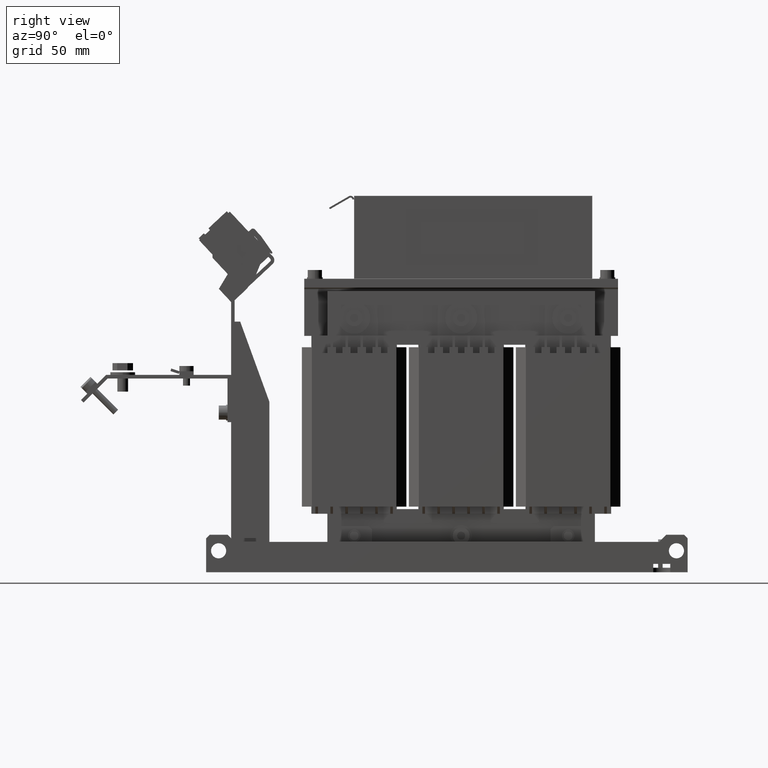
[diagram: clean part render]
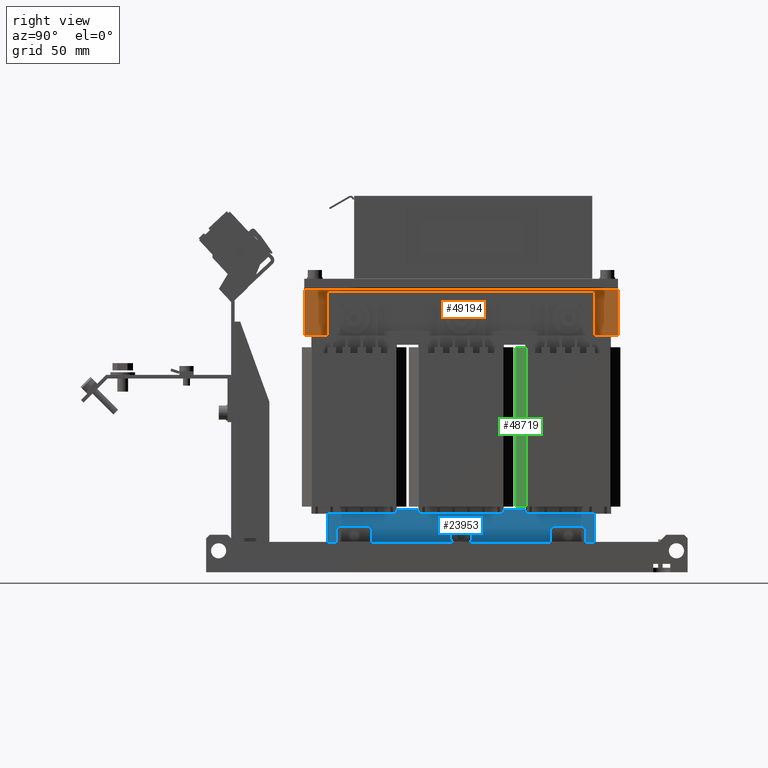
[diagram: same view with three faces highlighted in distinct colors, each labeled with its STEP entity id]
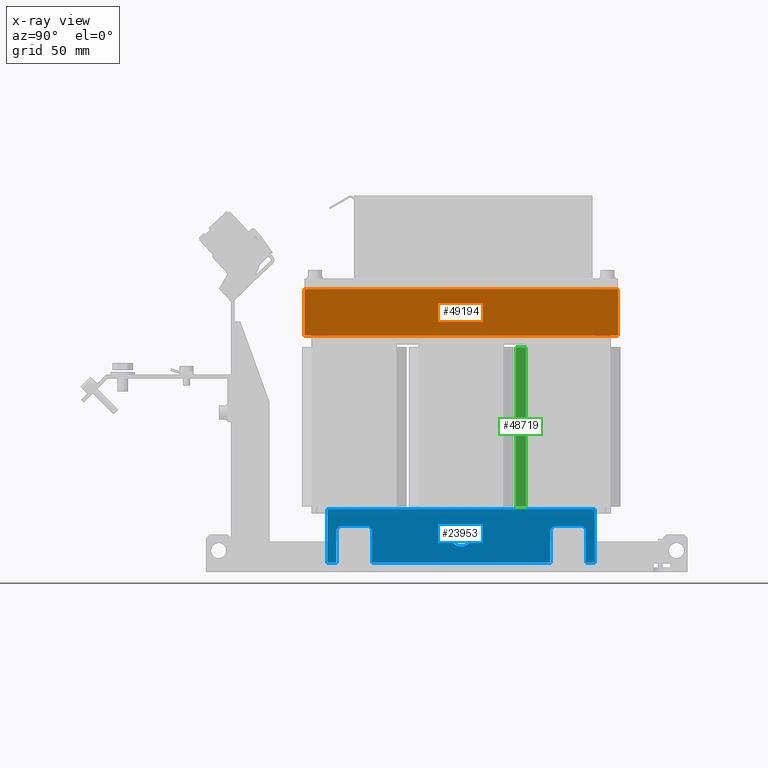
[diagram: x-ray of the same camera — body ghosted, the three highlighted faces saturated]
A machine part, right view with three faces highlighted in distinct colors.
The next image is the same camera in x-ray (body ghosted, the three faces saturated) — at least one of them is partly hidden behind the body in this view.
Their STEP definitions:

[orange] entity #49194 — the highlighted planar face has unit normal (1, 0, 0).
#37868=DIRECTION('',(0.E0,-1.803685406160E-14,-1.E0));
#37869=VECTOR('',#37868,2.6E1);
#37870=CARTESIAN_POINT('',(-1.575E1,9.599999999988E1,1.5605E2));
#37871=LINE('',#37870,#37869);
#37909=DIRECTION('',(0.E0,-1.E0,1.744059442320E-14));
#37910=VECTOR('',#37909,1.76E2);
#37911=CARTESIAN_POINT('',(-1.575E1,9.599999999988E1,1.5605E2));
#37912=LINE('',#37911,#37910);
#37913=DIRECTION('',(0.E0,-1.E0,1.776356839400E-14));
#37914=VECTOR('',#37913,1.76E2);
#37915=CARTESIAN_POINT('',(-1.575E1,9.599999999988E1,1.3005E2));
#37916=LINE('',#37915,#37914);
#38494=DIRECTION('',(0.E0,-1.749028272640E-14,-1.E0));
#38495=VECTOR('',#38494,2.6E1);
#38496=CARTESIAN_POINT('',(-1.575E1,-8.000000000012E1,1.5605E2));
#38497=LINE('',#38496,#38495);
#41191=CARTESIAN_POINT('',(-1.575E1,9.599999999988E1,1.5605E2));
#41192=VERTEX_POINT('',#41191);
#41193=CARTESIAN_POINT('',(-1.575E1,9.599999999988E1,1.3005E2));
#41194=VERTEX_POINT('',#41193);
#41215=CARTESIAN_POINT('',(-1.575E1,-8.000000000012E1,1.5605E2));
#41216=VERTEX_POINT('',#41215);
#41217=CARTESIAN_POINT('',(-1.575E1,-8.000000000012E1,1.3005E2));
#41218=VERTEX_POINT('',#41217);
#49181=CARTESIAN_POINT('',(-1.575E1,9.599999999988E1,1.5605E2));
#49182=DIRECTION('',(1.E0,0.E0,0.E0));
#49183=DIRECTION('',(0.E0,-1.764394935219E-14,-1.E0));
#49184=AXIS2_PLACEMENT_3D('',#49181,#49182,#49183);
#49185=PLANE('',#49184);
#49186=ORIENTED_EDGE('',*,*,#49097,.T.);
#49188=ORIENTED_EDGE('',*,*,#49187,.T.);
#49190=ORIENTED_EDGE('',*,*,#49189,.F.);
#49191=ORIENTED_EDGE('',*,*,#49173,.F.);
#49192=EDGE_LOOP('',(#49186,#49188,#49190,#49191));
#49193=FACE_OUTER_BOUND('',#49192,.F.);
#49194=ADVANCED_FACE('',(#49193),#49185,.T.);
#49097=EDGE_CURVE('',#41192,#41194,#37871,.T.);
#49173=EDGE_CURVE('',#41192,#41216,#37912,.T.);
#49187=EDGE_CURVE('',#41194,#41218,#37916,.T.);
#49189=EDGE_CURVE('',#41216,#41218,#38497,.T.);

[blue] entity #23953 — the highlighted planar face has unit normal (1, 0, 0).
#7519=DIRECTION('',(0.E0,0.E0,1.E0));
#7520=VECTOR('',#7519,1.85E1);
#7521=CARTESIAN_POINT('',(1.575E1,-6.2E1,2.85E0));
#7522=LINE('',#7521,#7520);
#7523=DIRECTION('',(0.E0,1.E0,0.E0));
#7524=VECTOR('',#7523,5.E0);
#7525=CARTESIAN_POINT('',(1.575E1,-6.7E1,2.85E0));
#7526=LINE('',#7525,#7524);
#7527=DIRECTION('',(0.E0,0.E0,-1.E0));
#7528=VECTOR('',#7527,3.E1);
#7529=CARTESIAN_POINT('',(1.575E1,-6.7E1,3.285E1));
#7530=LINE('',#7529,#7528);
#7531=DIRECTION('',(0.E0,-1.E0,0.E0));
#7532=VECTOR('',#7531,1.5E2);
#7533=CARTESIAN_POINT('',(1.575E1,8.3E1,3.285E1));
#7534=LINE('',#7533,#7532);
#7535=DIRECTION('',(0.E0,0.E0,1.E0));
#7536=VECTOR('',#7535,3.E1);
#7537=CARTESIAN_POINT('',(1.575E1,8.3E1,2.85E0));
#7538=LINE('',#7537,#7536);
#7539=DIRECTION('',(0.E0,1.E0,0.E0));
#7540=VECTOR('',#7539,5.E0);
#7541=CARTESIAN_POINT('',(1.575E1,7.8E1,2.85E0));
#7542=LINE('',#7541,#7540);
#7543=DIRECTION('',(0.E0,0.E0,1.E0));
#7544=VECTOR('',#7543,1.85E1);
#7545=CARTESIAN_POINT('',(1.575E1,7.8E1,2.85E0));
#7546=LINE('',#7545,#7544);
#7547=DIRECTION('',(0.E0,-7.071067811866E-1,7.071067811865E-1));
#7548=VECTOR('',#7547,2.828427124746E0);
#7549=CARTESIAN_POINT('',(1.575E1,7.8E1,2.135E1));
#7550=LINE('',#7549,#7548);
#7551=DIRECTION('',(0.E0,-1.E0,-1.021405182655E-14));
#7552=VECTOR('',#7551,1.6E1);
#7553=CARTESIAN_POINT('',(1.575E1,7.6E1,2.335E1));
#7554=LINE('',#7553,#7552);
#7555=DIRECTION('',(0.E0,-7.071067811865E-1,-7.071067811866E-1));
#7556=VECTOR('',#7555,2.828427124746E0);
#7557=CARTESIAN_POINT('',(1.575E1,6.E1,2.335E1));
#7558=LINE('',#7557,#7556);
#7559=DIRECTION('',(0.E0,0.E0,1.E0));
#7560=VECTOR('',#7559,1.85E1);
#7561=CARTESIAN_POINT('',(1.575E1,5.8E1,2.85E0));
#7562=LINE('',#7561,#7560);
#7563=DIRECTION('',(0.E0,1.E0,0.E0));
#7564=VECTOR('',#7563,1.E2);
#7565=CARTESIAN_POINT('',(1.575E1,-4.2E1,2.85E0));
#7566=LINE('',#7565,#7564);
#7567=DIRECTION('',(0.E0,0.E0,1.E0));
#7568=VECTOR('',#7567,1.85E1);
#7569=CARTESIAN_POINT('',(1.575E1,-4.2E1,2.85E0));
#7570=LINE('',#7569,#7568);
#7571=DIRECTION('',(0.E0,-7.071067811866E-1,7.071067811865E-1));
#7572=VECTOR('',#7571,2.828427124746E0);
#7573=CARTESIAN_POINT('',(1.575E1,-4.2E1,2.135E1));
#7574=LINE('',#7573,#7572);
#7575=DIRECTION('',(0.E0,-1.E0,-1.021405182655E-14));
#7576=VECTOR('',#7575,1.6E1);
#7577=CARTESIAN_POINT('',(1.575E1,-4.4E1,2.335E1));
#7578=LINE('',#7577,#7576);
#7579=DIRECTION('',(0.E0,-7.071067811865E-1,-7.071067811866E-1));
#7580=VECTOR('',#7579,2.828427124746E0);
#7581=CARTESIAN_POINT('',(1.575E1,-6.E1,2.335E1));
#7582=LINE('',#7581,#7580);
#7583=CARTESIAN_POINT('',(1.575E1,8.E0,1.785E1));
#7584=DIRECTION('',(1.E0,0.E0,0.E0));
#7585=DIRECTION('',(0.E0,1.E0,0.E0));
#7586=AXIS2_PLACEMENT_3D('',#7583,#7584,#7585);
#7588=CARTESIAN_POINT('',(1.575E1,8.E0,1.785E1));
#7589=DIRECTION('',(1.E0,0.E0,0.E0));
#7590=DIRECTION('',(0.E0,-1.E0,0.E0));
#7591=AXIS2_PLACEMENT_3D('',#7588,#7589,#7590);
#14964=CARTESIAN_POINT('',(1.575E1,-6.7E1,3.285E1));
#14965=CARTESIAN_POINT('',(1.575E1,-6.7E1,2.85E0));
#14966=VERTEX_POINT('',#14964);
#14967=VERTEX_POINT('',#14965);
#14968=CARTESIAN_POINT('',(1.575E1,8.3E1,2.85E0));
#14969=CARTESIAN_POINT('',(1.575E1,8.3E1,3.285E1));
#14970=VERTEX_POINT('',#14968);
#14971=VERTEX_POINT('',#14969);
#15012=CARTESIAN_POINT('',(1.575E1,-6.2E1,2.85E0));
#15013=CARTESIAN_POINT('',(1.575E1,-6.2E1,2.135E1));
#15014=VERTEX_POINT('',#15012);
#15015=VERTEX_POINT('',#15013);
#15016=CARTESIAN_POINT('',(1.575E1,-4.2E1,2.85E0));
#15017=CARTESIAN_POINT('',(1.575E1,-4.2E1,2.135E1));
#15018=VERTEX_POINT('',#15016);
#15019=VERTEX_POINT('',#15017);
#15020=CARTESIAN_POINT('',(1.575E1,-4.4E1,2.335E1));
#15021=VERTEX_POINT('',#15020);
#15022=CARTESIAN_POINT('',(1.575E1,-6.E1,2.335E1));
#15023=VERTEX_POINT('',#15022);
#15024=CARTESIAN_POINT('',(1.575E1,5.8E1,2.85E0));
#15025=CARTESIAN_POINT('',(1.575E1,5.8E1,2.135E1));
#15026=VERTEX_POINT('',#15024);
#15027=VERTEX_POINT('',#15025);
#15028=CARTESIAN_POINT('',(1.575E1,7.8E1,2.85E0));
#15029=CARTESIAN_POINT('',(1.575E1,7.8E1,2.135E1));
#15030=VERTEX_POINT('',#15028);
#15031=VERTEX_POINT('',#15029);
#15032=CARTESIAN_POINT('',(1.575E1,7.6E1,2.335E1));
#15033=VERTEX_POINT('',#15032);
#15034=CARTESIAN_POINT('',(1.575E1,6.E1,2.335E1));
#15035=VERTEX_POINT('',#15034);
#15056=CARTESIAN_POINT('',(1.575E1,1.4E1,1.785E1));
#15057=CARTESIAN_POINT('',(1.575E1,2.E0,1.785E1));
#15058=VERTEX_POINT('',#15056);
#15059=VERTEX_POINT('',#15057);
#23911=CARTESIAN_POINT('',(1.575E1,0.E0,4.263256414561E-14));
#23912=DIRECTION('',(1.E0,0.E0,0.E0));
#23913=DIRECTION('',(0.E0,1.E0,0.E0));
#23914=AXIS2_PLACEMENT_3D('',#23911,#23912,#23913);
#23915=PLANE('',#23914);
#23916=ORIENTED_EDGE('',*,*,#23843,.F.);
#23918=ORIENTED_EDGE('',*,*,#23917,.F.);
#23920=ORIENTED_EDGE('',*,*,#23919,.F.);
#23922=ORIENTED_EDGE('',*,*,#23921,.F.);
#23924=ORIENTED_EDGE('',*,*,#23923,.F.);
#23926=ORIENTED_EDGE('',*,*,#23925,.F.);
#23928=ORIENTED_EDGE('',*,*,#23927,.T.);
#23930=ORIENTED_EDGE('',*,*,#23929,.T.);
#23932=ORIENTED_EDGE('',*,*,#23931,.T.);
#23934=ORIENTED_EDGE('',*,*,#23933,.T.);
#23936=ORIENTED_EDGE('',*,*,#23935,.F.);
#23938=ORIENTED_EDGE('',*,*,#23937,.F.);
#23939=ORIENTED_EDGE('',*,*,#23889,.T.);
#23940=ORIENTED_EDGE('',*,*,#23902,.T.);
#23942=ORIENTED_EDGE('',*,*,#23941,.T.);
#23944=ORIENTED_EDGE('',*,*,#23943,.T.);
#23945=EDGE_LOOP('',(#23916,#23918,#23920,#23922,#23924,#23926,#23928,#23930,
#23932,#23934,#23936,#23938,#23939,#23940,#23942,#23944));
#23946=FACE_OUTER_BOUND('',#23945,.F.);
#23948=ORIENTED_EDGE('',*,*,#23947,.T.);
#23950=ORIENTED_EDGE('',*,*,#23949,.T.);
#23951=EDGE_LOOP('',(#23948,#23950));
#23952=FACE_BOUND('',#23951,.F.);
#23953=ADVANCED_FACE('',(#23946,#23952),#23915,.T.);
#7587=CIRCLE('',#7586,6.E0);
#7592=CIRCLE('',#7591,6.E0);
#23843=EDGE_CURVE('',#15014,#15015,#7522,.T.);
#23889=EDGE_CURVE('',#15018,#15019,#7570,.T.);
#23902=EDGE_CURVE('',#15019,#15021,#7574,.T.);
#23917=EDGE_CURVE('',#14967,#15014,#7526,.T.);
#23919=EDGE_CURVE('',#14966,#14967,#7530,.T.);
#23921=EDGE_CURVE('',#14971,#14966,#7534,.T.);
#23923=EDGE_CURVE('',#14970,#14971,#7538,.T.);
#23925=EDGE_CURVE('',#15030,#14970,#7542,.T.);
#23927=EDGE_CURVE('',#15030,#15031,#7546,.T.);
#23929=EDGE_CURVE('',#15031,#15033,#7550,.T.);
#23931=EDGE_CURVE('',#15033,#15035,#7554,.T.);
#23933=EDGE_CURVE('',#15035,#15027,#7558,.T.);
#23935=EDGE_CURVE('',#15026,#15027,#7562,.T.);
#23937=EDGE_CURVE('',#15018,#15026,#7566,.T.);
#23941=EDGE_CURVE('',#15021,#15023,#7578,.T.);
#23943=EDGE_CURVE('',#15023,#15015,#7582,.T.);
#23947=EDGE_CURVE('',#15058,#15059,#7587,.T.);
#23949=EDGE_CURVE('',#15059,#15058,#7592,.T.);

[green] entity #48719 — the highlighted planar face has unit normal (0.5, -0.866, 0).
#33215=DIRECTION('',(8.660254037844E-1,5.E-1,2.279157106014E-14));
#33216=VECTOR('',#33215,1.122324495309E1);
#33217=CARTESIAN_POINT('',(2.398038475780E1,3.869999999988E1,1.2365E2));
#33218=LINE('',#33217,#33216);
#35375=DIRECTION('',(8.660254037844E-1,5.E-1,4.717855209448E-12));
#35376=VECTOR('',#35375,1.122324495309E1);
#35377=CARTESIAN_POINT('',(2.398038475780E1,3.869999999988E1,3.424999999995E1));
#35378=LINE('',#35377,#35376);
#37567=DIRECTION('',(2.026715857034E-14,1.351143904689E-14,-1.E0));
#37568=VECTOR('',#37567,8.94E1);
#37569=CARTESIAN_POINT('',(3.370000000007E1,4.431162247642E1,1.2365E2));
#37570=LINE('',#37569,#37568);
#37651=DIRECTION('',(2.030689809693E-14,1.351143904688E-14,-1.E0));
#37652=VECTOR('',#37651,8.940000000005E1);
#37653=CARTESIAN_POINT('',(2.398038475780E1,3.869999999988E1,1.2365E2));
#37654=LINE('',#37653,#37652);
#39289=CARTESIAN_POINT('',(2.398038475780E1,3.869999999988E1,1.2365E2));
#39290=VERTEX_POINT('',#39289);
#39291=CARTESIAN_POINT('',(3.370000000007E1,4.431162247642E1,1.2365E2));
#39292=VERTEX_POINT('',#39291);
#39335=CARTESIAN_POINT('',(3.370000000008E1,4.431162247643E1,3.425E1));
#39337=VERTEX_POINT('',#39335);
#39669=CARTESIAN_POINT('',(2.398038475780E1,3.869999999988E1,3.424999999995E1));
#39670=VERTEX_POINT('',#39669);
#48707=CARTESIAN_POINT('',(2.398038475780E1,3.869999999988E1,1.2365E2));
#48708=DIRECTION('',(5.E-1,-8.660254037844E-1,0.E0));
#48709=DIRECTION('',(8.660254037844E-1,5.E-1,2.432365024374E-14));
#48710=AXIS2_PLACEMENT_3D('',#48707,#48708,#48709);
#48711=PLANE('',#48710);
#48712=ORIENTED_EDGE('',*,*,#44750,.F.);
#48714=ORIENTED_EDGE('',*,*,#48713,.F.);
#48715=ORIENTED_EDGE('',*,*,#42054,.T.);
#48716=ORIENTED_EDGE('',*,*,#48431,.T.);
#48717=EDGE_LOOP('',(#48712,#48714,#48715,#48716));
#48718=FACE_OUTER_BOUND('',#48717,.F.);
#48719=ADVANCED_FACE('',(#48718),#48711,.T.);
#42054=EDGE_CURVE('',#39290,#39292,#33218,.T.);
#44750=EDGE_CURVE('',#39670,#39337,#35378,.T.);
#48431=EDGE_CURVE('',#39292,#39337,#37570,.T.);
#48713=EDGE_CURVE('',#39290,#39670,#37654,.T.);